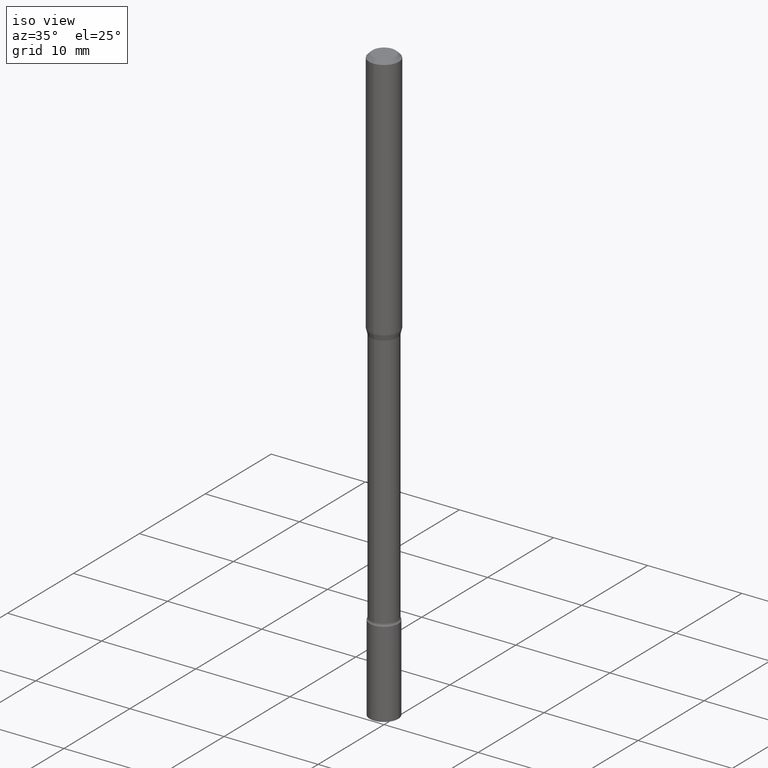
[diagram: clean part render]
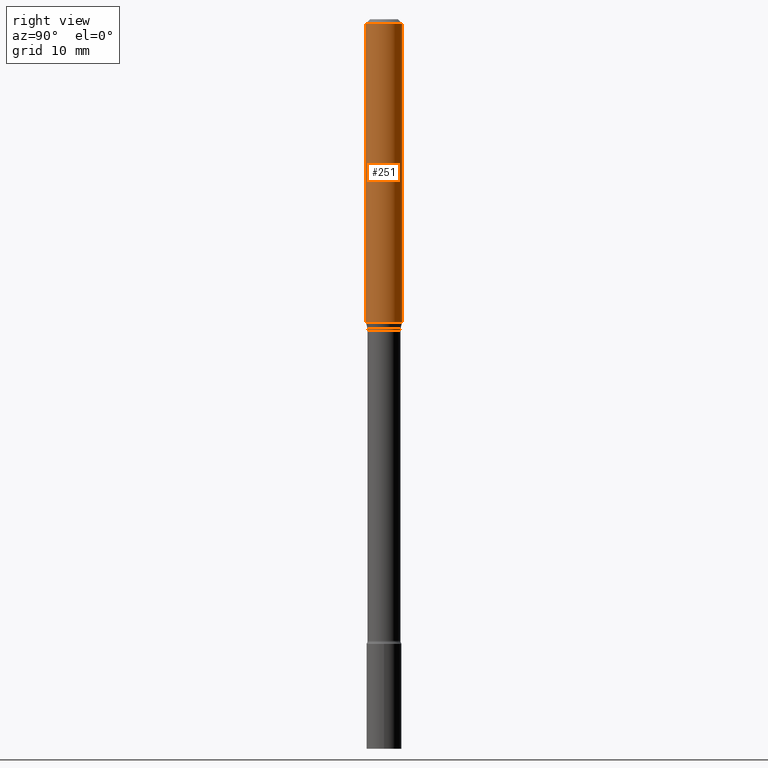
[diagram: tour spotlight — one face highlighted and labeled with its STEP entity id]
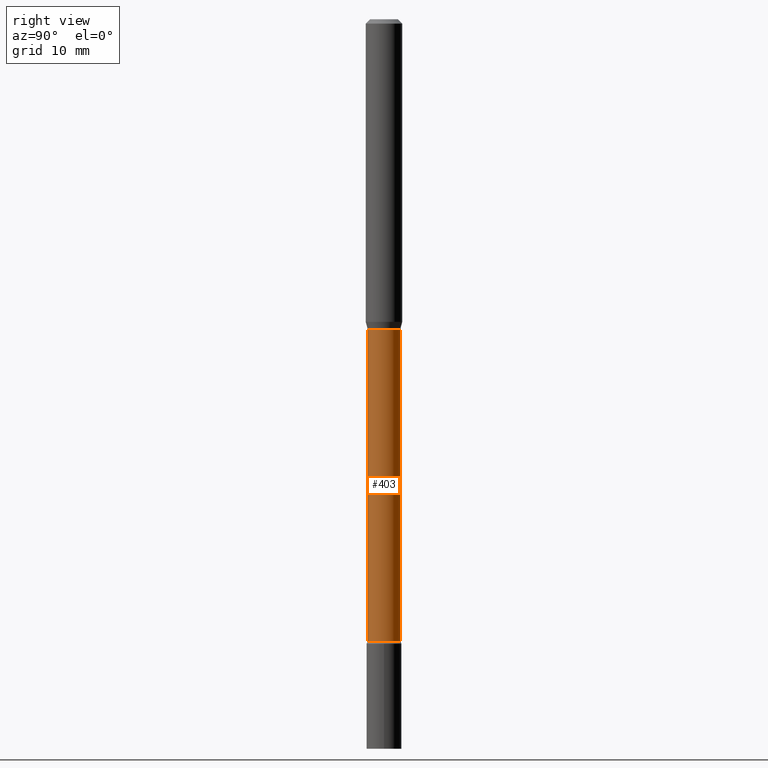
[diagram: tour spotlight — one face highlighted and labeled with its STEP entity id]
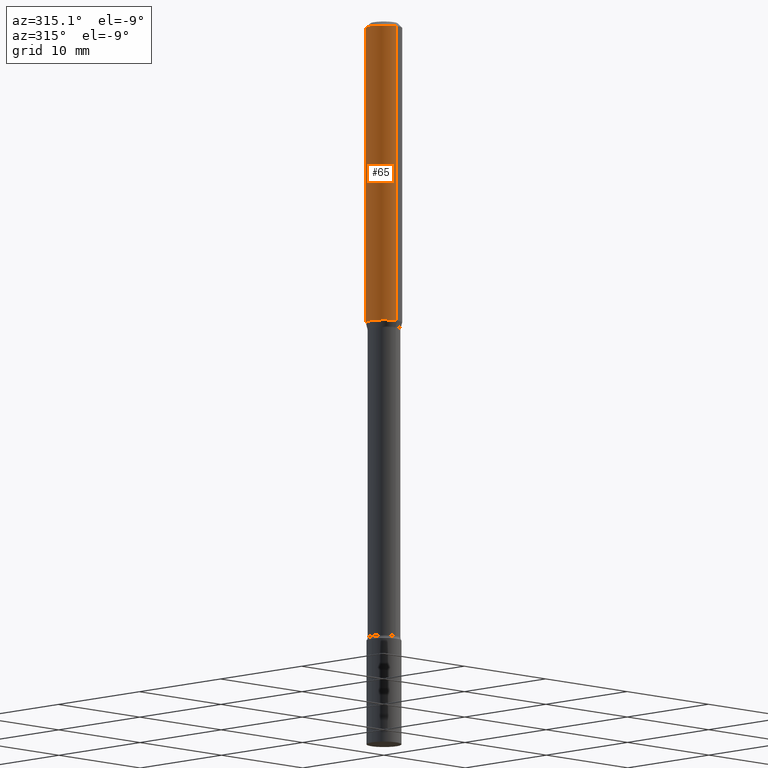
[diagram: tour spotlight — one face highlighted and labeled with its STEP entity id]
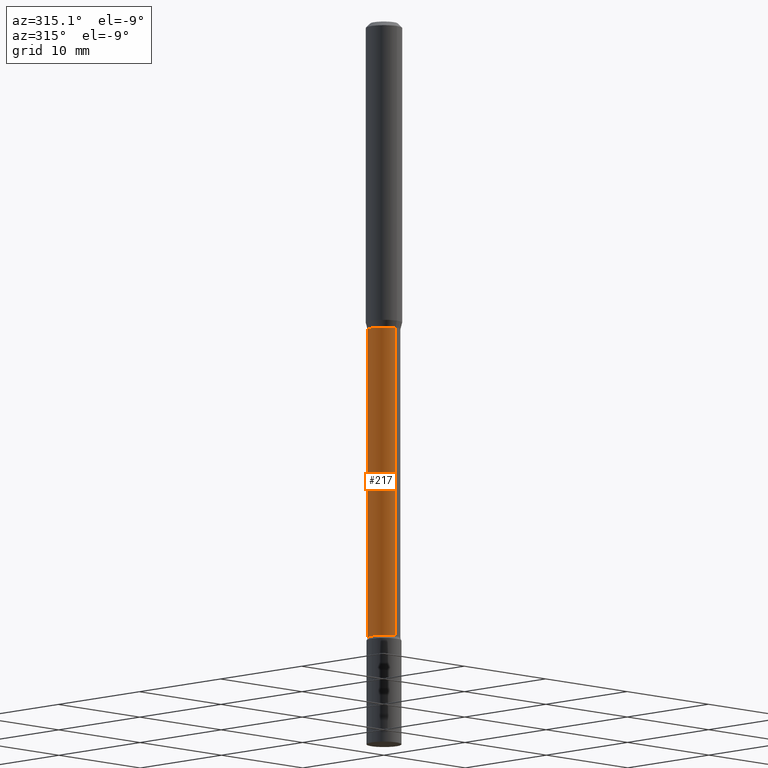
[diagram: tour spotlight — one face highlighted and labeled with its STEP entity id]
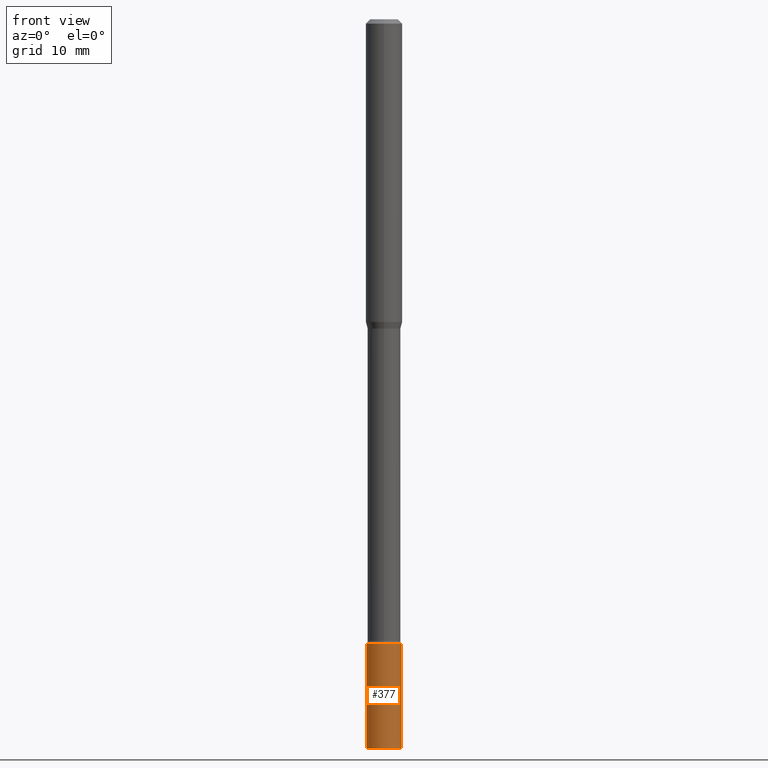
[diagram: tour spotlight — one face highlighted and labeled with its STEP entity id]
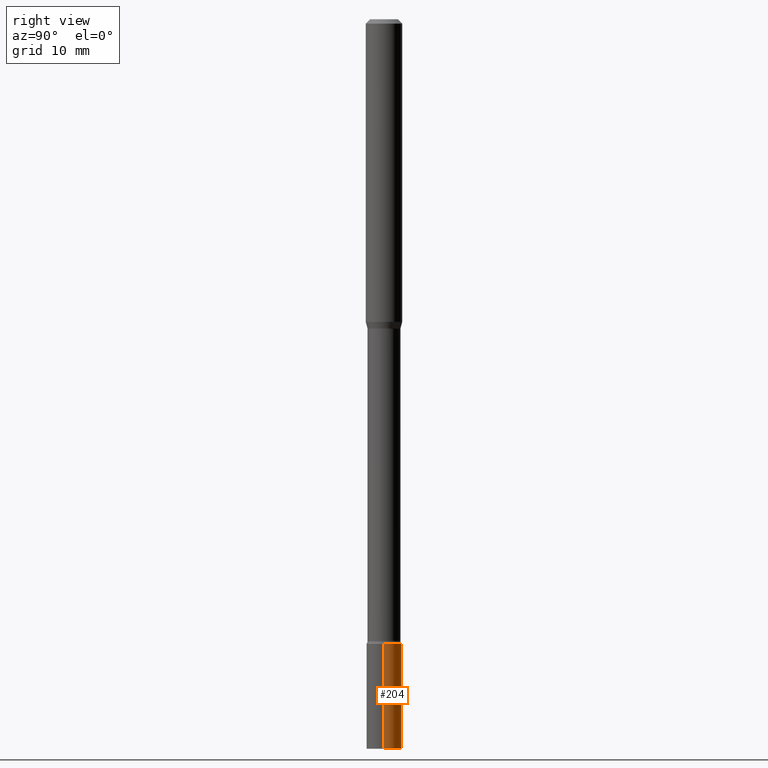
[diagram: tour spotlight — one face highlighted and labeled with its STEP entity id]
A machine part: a face-by-face anatomy tour. The part has 18 B-rep faces; the first image is the clean iso view, then the 6 largest visible faces are spotlighted one at a time (largest first), each with its STEP entity span.

Face 1 — right view, entity #251. In plain terms, the highlighted cylindrical surface (edge-blend (fillet) strip) has radius 1.5875 mm, axis along (-0, 0, 1).
Definition (entity closure, byte-faithful):
#2 = CIRCLE ( 'NONE', #297, 0.06250000000000000000 ) ;
#12 = EDGE_LOOP ( 'NONE', ( #413, #180, #369, #170 ) ) ;
#24 = VERTEX_POINT ( 'NONE', #423 ) ;
#38 = LINE ( 'NONE', #80, #219 ) ;
#43 = DIRECTION ( 'NONE',  ( -2.445444235938896917E-29, 3.491516524834212024E-15, 1.000000000000000000 ) ) ;
#68 = CARTESIAN_POINT ( 'NONE',  ( 0.000000000000000000, 0.000000000000000000, 0.000000000000000000 ) ) ;
#76 = VECTOR ( 'NONE', #186, 39.37007874015748143 ) ;
#80 = CARTESIAN_POINT ( 'NONE',  ( 4.440892098500625669E-16, 0.06250000000000000000, -2.182197828021382515E-16 ) ) ;
#104 = VERTEX_POINT ( 'NONE', #157 ) ;
#110 = CYLINDRICAL_SURFACE ( 'NONE', #173, 0.06250000000000000000 ) ;
#134 = EDGE_CURVE ( 'NONE', #250, #104, #512, .T. ) ;
#151 = EDGE_CURVE ( 'NONE', #250, #24, #381, .T. ) ;
#157 = CARTESIAN_POINT ( 'NONE',  ( -4.364351673553912750E-16, -0.06250000000000005551, -0.01499999999999981209 ) ) ;
#160 = CARTESIAN_POINT ( 'NONE',  ( 2.536499105068069007E-29, -3.621521362220765207E-15, -1.037234490073830173 ) ) ;
#170 = ORIENTED_EDGE ( 'NONE', *, *, #134, .F. ) ;
#173 = AXIS2_PLACEMENT_3D ( 'NONE', #68, #227, #349 ) ;
#180 = ORIENTED_EDGE ( 'NONE', *, *, #266, .T. ) ;
#186 = DIRECTION ( 'NONE',  ( -2.445444235938896917E-29, 3.491516524834212024E-15, 1.000000000000000000 ) ) ;
#189 = DIRECTION ( 'NONE',  ( -2.445444235938896917E-29, 3.491516524834212024E-15, 1.000000000000000000 ) ) ;
#219 = VECTOR ( 'NONE', #360, 39.37007874015748143 ) ;
#227 = DIRECTION ( 'NONE',  ( -2.445444235938896917E-29, 3.491516524834212024E-15, 1.000000000000000000 ) ) ;
#250 = VERTEX_POINT ( 'NONE', #268 ) ;
#251 = ADVANCED_FACE ( 'NONE', ( #431 ), #110, .T. ) ;
#266 = EDGE_CURVE ( 'NONE', #24, #469, #38, .T. ) ;
#268 = CARTESIAN_POINT ( 'NONE',  ( -4.364351673553663766E-16, -0.06250000000000363598, -1.037234490073829951 ) ) ;
#297 = AXIS2_PLACEMENT_3D ( 'NONE', #408, #43, #368 ) ;
#320 = CARTESIAN_POINT ( 'NONE',  ( -4.364351673553916201E-16, -0.06250000000000000000, 2.182197828021382515E-16 ) ) ;
#340 = CARTESIAN_POINT ( 'NONE',  ( 4.440892098500881555E-16, 0.06249999999999995837, -0.01500000000000024751 ) ) ;
#349 = DIRECTION ( 'NONE',  ( -6.982962677686265922E-15, -1.000000000000000000, 3.491516524834212024E-15 ) ) ;
#360 = DIRECTION ( 'NONE',  ( -2.445444235938896917E-29, 3.491516524834212024E-15, 1.000000000000000000 ) ) ;
#368 = DIRECTION ( 'NONE',  ( -6.982962677686265922E-15, -1.000000000000000000, 3.483106191921935554E-15 ) ) ;
#369 = ORIENTED_EDGE ( 'NONE', *, *, #409, .F. ) ;
#381 = CIRCLE ( 'NONE', #401, 0.06250000000000000000 ) ;
#401 = AXIS2_PLACEMENT_3D ( 'NONE', #160, #189, #436 ) ;
#408 = CARTESIAN_POINT ( 'NONE',  ( 3.668166353908352803E-31, -5.237274787251328908E-17, -0.01500000000000003067 ) ) ;
#409 = EDGE_CURVE ( 'NONE', #104, #469, #2, .T. ) ;
#413 = ORIENTED_EDGE ( 'NONE', *, *, #151, .T. ) ;
#423 = CARTESIAN_POINT ( 'NONE',  ( 4.440892098500877611E-16, 0.06249999999999636402, -1.037234490073830395 ) ) ;
#431 = FACE_OUTER_BOUND ( 'NONE', #12, .T. ) ;
#436 = DIRECTION ( 'NONE',  ( -6.982962677686265922E-15, -1.000000000000000000, 4.370956789862821150E-15 ) ) ;
#469 = VERTEX_POINT ( 'NONE', #340 ) ;
#512 = LINE ( 'NONE', #320, #76 ) ;

Face 2 — right view, entity #403. In plain terms, the highlighted cylindrical surface (edge-blend (fillet) strip) has radius 1.4326 mm, axis along (-0, 0, 1).
Definition (entity closure, byte-faithful):
#1 = DIRECTION ( 'NONE',  ( -6.982962677686265922E-15, -1.000000000000000000, 2.421851058212999609E-15 ) ) ;
#13 = CIRCLE ( 'NONE', #146, 0.05640000000000008201 ) ;
#42 = AXIS2_PLACEMENT_3D ( 'NONE', #488, #412, #1 ) ;
#82 = DIRECTION ( 'NONE',  ( -6.982962677686265133E-15, -1.000000000000000000, 3.491516524834212024E-15 ) ) ;
#105 = EDGE_CURVE ( 'NONE', #345, #497, #271, .T. ) ;
#115 = CARTESIAN_POINT ( 'NONE',  ( 4.007461029686966931E-16, 0.05640000000000004038, -1.969215320006496894E-16 ) ) ;
#124 = EDGE_CURVE ( 'NONE', #495, #224, #150, .T. ) ;
#146 = AXIS2_PLACEMENT_3D ( 'NONE', #365, #169, #358 ) ;
#150 = LINE ( 'NONE', #351, #165 ) ;
#165 = VECTOR ( 'NONE', #319, 39.37007874015748143 ) ;
#167 = FACE_OUTER_BOUND ( 'NONE', #455, .T. ) ;
#169 = DIRECTION ( 'NONE',  ( -2.445444235938896917E-29, 3.491516524834212024E-15, 1.000000000000000000 ) ) ;
#205 = CYLINDRICAL_SURFACE ( 'NONE', #263, 0.05640000000000004038 ) ;
#208 = ORIENTED_EDGE ( 'NONE', *, *, #124, .F. ) ;
#224 = VERTEX_POINT ( 'NONE', #441 ) ;
#255 = VECTOR ( 'NONE', #348, 39.37007874015748143 ) ;
#256 = CARTESIAN_POINT ( 'NONE',  ( -3.938390950214538328E-16, -0.05640000000000751357, -2.130251153914436646 ) ) ;
#263 = AXIS2_PLACEMENT_3D ( 'NONE', #325, #484, #82 ) ;
#271 = LINE ( 'NONE', #115, #255 ) ;
#300 = ORIENTED_EDGE ( 'NONE', *, *, #314, .F. ) ;
#314 = EDGE_CURVE ( 'NONE', #224, #497, #517, .T. ) ;
#319 = DIRECTION ( 'NONE',  ( -2.445444235938896917E-29, 3.491516524834212024E-15, 1.000000000000000000 ) ) ;
#325 = CARTESIAN_POINT ( 'NONE',  ( 0.000000000000000000, 0.000000000000000000, 0.000000000000000000 ) ) ;
#328 = EDGE_CURVE ( 'NONE', #495, #345, #13, .T. ) ;
#330 = ORIENTED_EDGE ( 'NONE', *, *, #328, .T. ) ;
#345 = VERTEX_POINT ( 'NONE', #414 ) ;
#348 = DIRECTION ( 'NONE',  ( -2.445444235938896917E-29, 3.491516524834212024E-15, 1.000000000000000000 ) ) ;
#351 = CARTESIAN_POINT ( 'NONE',  ( -3.938390950215056511E-16, -0.05640000000000004038, 1.969215320006496894E-16 ) ) ;
#358 = DIRECTION ( 'NONE',  ( -6.982962677686265133E-15, -1.000000000000000000, 4.843702116425991330E-15 ) ) ;
#365 = CARTESIAN_POINT ( 'NONE',  ( 5.209410405442243342E-29, -7.437807105939404546E-15, -2.130251153914437090 ) ) ;
#366 = ORIENTED_EDGE ( 'NONE', *, *, #105, .T. ) ;
#403 = ADVANCED_FACE ( 'NONE', ( #167 ), #205, .T. ) ;
#412 = DIRECTION ( 'NONE',  ( -2.445444235938896917E-29, 3.491516524834212024E-15, 1.000000000000000000 ) ) ;
#414 = CARTESIAN_POINT ( 'NONE',  ( 4.135358722124309276E-16, 0.05639999999999264352, -2.130251153914437090 ) ) ;
#419 = CARTESIAN_POINT ( 'NONE',  ( 4.007461029687488566E-16, 0.05639999999999628644, -1.061974787463811243 ) ) ;
#441 = CARTESIAN_POINT ( 'NONE',  ( -3.938390950214793722E-16, -0.05640000000000369718, -1.061974787463811021 ) ) ;
#455 = EDGE_LOOP ( 'NONE', ( #330, #366, #300, #208 ) ) ;
#484 = DIRECTION ( 'NONE',  ( -2.445444235938896917E-29, 3.491516524834212024E-15, 1.000000000000000000 ) ) ;
#488 = CARTESIAN_POINT ( 'NONE',  ( 2.597000122715812178E-29, -3.707902519387197566E-15, -1.061974787463811243 ) ) ;
#495 = VERTEX_POINT ( 'NONE', #256 ) ;
#497 = VERTEX_POINT ( 'NONE', #419 ) ;
#517 = CIRCLE ( 'NONE', #42, 0.05639999999999999181 ) ;

Face 3 — auxiliary view, entity #65. In plain terms, the highlighted cylindrical surface (edge-blend (fillet) strip) has radius 1.5875 mm, axis along (-0, 0, 1).
Definition (entity closure, byte-faithful):
#10 = EDGE_CURVE ( 'NONE', #469, #104, #514, .T. ) ;
#14 = DIRECTION ( 'NONE',  ( -2.445444235938896917E-29, 3.491516524834212024E-15, 1.000000000000000000 ) ) ;
#16 = DIRECTION ( 'NONE',  ( -6.982962677686265922E-15, -1.000000000000000000, 3.491516524834212024E-15 ) ) ;
#24 = VERTEX_POINT ( 'NONE', #423 ) ;
#28 = AXIS2_PLACEMENT_3D ( 'NONE', #54, #14, #426 ) ;
#38 = LINE ( 'NONE', #80, #219 ) ;
#54 = CARTESIAN_POINT ( 'NONE',  ( 2.536499105068069007E-29, -3.621521362220765207E-15, -1.037234490073830173 ) ) ;
#65 = ADVANCED_FACE ( 'NONE', ( #143 ), #504, .T. ) ;
#67 = CARTESIAN_POINT ( 'NONE',  ( 3.668166353908352803E-31, -5.237274787251328908E-17, -0.01500000000000003067 ) ) ;
#76 = VECTOR ( 'NONE', #186, 39.37007874015748143 ) ;
#80 = CARTESIAN_POINT ( 'NONE',  ( 4.440892098500625669E-16, 0.06250000000000000000, -2.182197828021382515E-16 ) ) ;
#81 = ORIENTED_EDGE ( 'NONE', *, *, #10, .F. ) ;
#97 = CIRCLE ( 'NONE', #28, 0.06250000000000000000 ) ;
#104 = VERTEX_POINT ( 'NONE', #157 ) ;
#134 = EDGE_CURVE ( 'NONE', #250, #104, #512, .T. ) ;
#143 = FACE_OUTER_BOUND ( 'NONE', #422, .T. ) ;
#157 = CARTESIAN_POINT ( 'NONE',  ( -4.364351673553912750E-16, -0.06250000000000005551, -0.01499999999999981209 ) ) ;
#168 = ORIENTED_EDGE ( 'NONE', *, *, #508, .T. ) ;
#175 = ORIENTED_EDGE ( 'NONE', *, *, #134, .T. ) ;
#186 = DIRECTION ( 'NONE',  ( -2.445444235938896917E-29, 3.491516524834212024E-15, 1.000000000000000000 ) ) ;
#214 = DIRECTION ( 'NONE',  ( -6.982962677686265922E-15, -1.000000000000000000, 3.483106191921935554E-15 ) ) ;
#219 = VECTOR ( 'NONE', #360, 39.37007874015748143 ) ;
#250 = VERTEX_POINT ( 'NONE', #268 ) ;
#266 = EDGE_CURVE ( 'NONE', #24, #469, #38, .T. ) ;
#268 = CARTESIAN_POINT ( 'NONE',  ( -4.364351673553663766E-16, -0.06250000000000363598, -1.037234490073829951 ) ) ;
#296 = DIRECTION ( 'NONE',  ( -2.445444235938896917E-29, 3.491516524834212024E-15, 1.000000000000000000 ) ) ;
#320 = CARTESIAN_POINT ( 'NONE',  ( -4.364351673553916201E-16, -0.06250000000000000000, 2.182197828021382515E-16 ) ) ;
#340 = CARTESIAN_POINT ( 'NONE',  ( 4.440892098500881555E-16, 0.06249999999999995837, -0.01500000000000024751 ) ) ;
#360 = DIRECTION ( 'NONE',  ( -2.445444235938896917E-29, 3.491516524834212024E-15, 1.000000000000000000 ) ) ;
#372 = AXIS2_PLACEMENT_3D ( 'NONE', #420, #378, #16 ) ;
#378 = DIRECTION ( 'NONE',  ( -2.445444235938896917E-29, 3.491516524834212024E-15, 1.000000000000000000 ) ) ;
#420 = CARTESIAN_POINT ( 'NONE',  ( 0.000000000000000000, 0.000000000000000000, 0.000000000000000000 ) ) ;
#422 = EDGE_LOOP ( 'NONE', ( #492, #168, #175, #81 ) ) ;
#423 = CARTESIAN_POINT ( 'NONE',  ( 4.440892098500877611E-16, 0.06249999999999636402, -1.037234490073830395 ) ) ;
#426 = DIRECTION ( 'NONE',  ( -6.982962677686265922E-15, -1.000000000000000000, 4.370956789862821150E-15 ) ) ;
#469 = VERTEX_POINT ( 'NONE', #340 ) ;
#473 = AXIS2_PLACEMENT_3D ( 'NONE', #67, #296, #214 ) ;
#492 = ORIENTED_EDGE ( 'NONE', *, *, #266, .F. ) ;
#504 = CYLINDRICAL_SURFACE ( 'NONE', #372, 0.06250000000000000000 ) ;
#508 = EDGE_CURVE ( 'NONE', #24, #250, #97, .T. ) ;
#512 = LINE ( 'NONE', #320, #76 ) ;
#514 = CIRCLE ( 'NONE', #473, 0.06250000000000000000 ) ;

Face 4 — auxiliary view, entity #217. In plain terms, the highlighted cylindrical surface (edge-blend (fillet) strip) has radius 1.4326 mm, axis along (-0, 0, 1).
Definition (entity closure, byte-faithful):
#20 = EDGE_CURVE ( 'NONE', #497, #224, #244, .T. ) ;
#51 = DIRECTION ( 'NONE',  ( -2.445444235938896917E-29, 3.491516524834212024E-15, 1.000000000000000000 ) ) ;
#95 = AXIS2_PLACEMENT_3D ( 'NONE', #108, #118, #400 ) ;
#105 = EDGE_CURVE ( 'NONE', #345, #497, #271, .T. ) ;
#108 = CARTESIAN_POINT ( 'NONE',  ( 0.000000000000000000, 0.000000000000000000, 0.000000000000000000 ) ) ;
#115 = CARTESIAN_POINT ( 'NONE',  ( 4.007461029686966931E-16, 0.05640000000000004038, -1.969215320006496894E-16 ) ) ;
#118 = DIRECTION ( 'NONE',  ( -2.445444235938896917E-29, 3.491516524834212024E-15, 1.000000000000000000 ) ) ;
#124 = EDGE_CURVE ( 'NONE', #495, #224, #150, .T. ) ;
#126 = ORIENTED_EDGE ( 'NONE', *, *, #105, .F. ) ;
#140 = ORIENTED_EDGE ( 'NONE', *, *, #465, .T. ) ;
#141 = CARTESIAN_POINT ( 'NONE',  ( 5.209410405442243342E-29, -7.437807105939404546E-15, -2.130251153914437090 ) ) ;
#150 = LINE ( 'NONE', #351, #165 ) ;
#156 = CIRCLE ( 'NONE', #364, 0.05640000000000008201 ) ;
#165 = VECTOR ( 'NONE', #319, 39.37007874015748143 ) ;
#199 = ORIENTED_EDGE ( 'NONE', *, *, #124, .T. ) ;
#217 = ADVANCED_FACE ( 'NONE', ( #235 ), #520, .T. ) ;
#224 = VERTEX_POINT ( 'NONE', #441 ) ;
#235 = FACE_OUTER_BOUND ( 'NONE', #302, .T. ) ;
#244 = CIRCLE ( 'NONE', #305, 0.05639999999999999181 ) ;
#253 = ORIENTED_EDGE ( 'NONE', *, *, #20, .F. ) ;
#255 = VECTOR ( 'NONE', #348, 39.37007874015748143 ) ;
#256 = CARTESIAN_POINT ( 'NONE',  ( -3.938390950214538328E-16, -0.05640000000000751357, -2.130251153914436646 ) ) ;
#261 = DIRECTION ( 'NONE',  ( -6.982962677686265922E-15, -1.000000000000000000, 2.421851058212999609E-15 ) ) ;
#271 = LINE ( 'NONE', #115, #255 ) ;
#302 = EDGE_LOOP ( 'NONE', ( #126, #140, #199, #253 ) ) ;
#305 = AXIS2_PLACEMENT_3D ( 'NONE', #307, #387, #261 ) ;
#307 = CARTESIAN_POINT ( 'NONE',  ( 2.597000122715812178E-29, -3.707902519387197566E-15, -1.061974787463811243 ) ) ;
#319 = DIRECTION ( 'NONE',  ( -2.445444235938896917E-29, 3.491516524834212024E-15, 1.000000000000000000 ) ) ;
#345 = VERTEX_POINT ( 'NONE', #414 ) ;
#348 = DIRECTION ( 'NONE',  ( -2.445444235938896917E-29, 3.491516524834212024E-15, 1.000000000000000000 ) ) ;
#351 = CARTESIAN_POINT ( 'NONE',  ( -3.938390950215056511E-16, -0.05640000000000004038, 1.969215320006496894E-16 ) ) ;
#364 = AXIS2_PLACEMENT_3D ( 'NONE', #141, #51, #462 ) ;
#387 = DIRECTION ( 'NONE',  ( -2.445444235938896917E-29, 3.491516524834212024E-15, 1.000000000000000000 ) ) ;
#400 = DIRECTION ( 'NONE',  ( -6.982962677686265133E-15, -1.000000000000000000, 3.491516524834212024E-15 ) ) ;
#414 = CARTESIAN_POINT ( 'NONE',  ( 4.135358722124309276E-16, 0.05639999999999264352, -2.130251153914437090 ) ) ;
#419 = CARTESIAN_POINT ( 'NONE',  ( 4.007461029687488566E-16, 0.05639999999999628644, -1.061974787463811243 ) ) ;
#441 = CARTESIAN_POINT ( 'NONE',  ( -3.938390950214793722E-16, -0.05640000000000369718, -1.061974787463811021 ) ) ;
#462 = DIRECTION ( 'NONE',  ( -6.982962677686265133E-15, -1.000000000000000000, 4.843702116425991330E-15 ) ) ;
#465 = EDGE_CURVE ( 'NONE', #345, #495, #156, .T. ) ;
#495 = VERTEX_POINT ( 'NONE', #256 ) ;
#497 = VERTEX_POINT ( 'NONE', #419 ) ;
#520 = CYLINDRICAL_SURFACE ( 'NONE', #95, 0.05640000000000004038 ) ;

Face 5 — front view, entity #377. In plain terms, the highlighted cylindrical surface (edge-blend (fillet) strip) has radius 1.524 mm, axis along (-0, 0, 1).
Definition (entity closure, byte-faithful):
#6 = CARTESIAN_POINT ( 'NONE',  ( -0.05999999999999999778, -7.673911064660037924E-15, -2.140000000000000124 ) ) ;
#7 = VERTEX_POINT ( 'NONE', #384 ) ;
#39 = DIRECTION ( 'NONE',  ( -2.445468806185136597E-29, 3.491481338843145583E-15, 1.000000000000000000 ) ) ;
#40 = EDGE_CURVE ( 'NONE', #206, #326, #154, .T. ) ;
#47 = ORIENTED_EDGE ( 'NONE', *, *, #299, .T. ) ;
#50 = EDGE_LOOP ( 'NONE', ( #487, #158, #47, #192 ) ) ;
#52 = VECTOR ( 'NONE', #153, 39.37007874015748143 ) ;
#72 = LINE ( 'NONE', #74, #52 ) ;
#74 = CARTESIAN_POINT ( 'NONE',  ( -0.05999999999999999778, 4.263256414560600957E-16, -2.951361054152943413E-30 ) ) ;
#85 = CYLINDRICAL_SURFACE ( 'NONE', #179, 0.05999999999999999778 ) ;
#107 = DIRECTION ( 'NONE',  ( 1.000000000000000000, -6.982962677686251722E-15, 0.000000000000000000 ) ) ;
#122 = DIRECTION ( 'NONE',  ( 1.000000000000000000, -6.982962677686267499E-15, 4.876176775795936353E-29 ) ) ;
#142 = EDGE_CURVE ( 'NONE', #206, #264, #72, .T. ) ;
#153 = DIRECTION ( 'NONE',  ( -2.445468806185136877E-29, 3.491481338843145188E-15, 1.000000000000000000 ) ) ;
#154 = CIRCLE ( 'NONE', #226, 0.05999999999999999778 ) ;
#158 = ORIENTED_EDGE ( 'NONE', *, *, #40, .T. ) ;
#179 = AXIS2_PLACEMENT_3D ( 'NONE', #456, #39, #122 ) ;
#187 = CIRCLE ( 'NONE', #236, 0.05999999999999999778 ) ;
#192 = ORIENTED_EDGE ( 'NONE', *, *, #291, .F. ) ;
#202 = DIRECTION ( 'NONE',  ( -2.445468806185136597E-29, 3.491481338843145583E-15, 1.000000000000000000 ) ) ;
#206 = VERTEX_POINT ( 'NONE', #518 ) ;
#207 = CARTESIAN_POINT ( 'NONE',  ( 5.233303245236192586E-29, -7.471770065124331886E-15, -2.140000000000000124 ) ) ;
#226 = AXIS2_PLACEMENT_3D ( 'NONE', #257, #467, #107 ) ;
#236 = AXIS2_PLACEMENT_3D ( 'NONE', #207, #202, #490 ) ;
#241 = LINE ( 'NONE', #446, #323 ) ;
#257 = CARTESIAN_POINT ( 'NONE',  ( 6.113672015462842613E-29, -8.728703347107864943E-15, -2.500000000000000000 ) ) ;
#264 = VERTEX_POINT ( 'NONE', #6 ) ;
#286 = DIRECTION ( 'NONE',  ( -2.445468806185136877E-29, 3.491481338843145188E-15, 1.000000000000000000 ) ) ;
#291 = EDGE_CURVE ( 'NONE', #264, #7, #187, .T. ) ;
#293 = FACE_OUTER_BOUND ( 'NONE', #50, .T. ) ;
#299 = EDGE_CURVE ( 'NONE', #326, #7, #241, .T. ) ;
#323 = VECTOR ( 'NONE', #286, 39.37007874015748143 ) ;
#326 = VERTEX_POINT ( 'NONE', #406 ) ;
#377 = ADVANCED_FACE ( 'NONE', ( #293 ), #85, .T. ) ;
#384 = CARTESIAN_POINT ( 'NONE',  ( 0.05999999999999999778, -7.890747825785508520E-15, -2.140000000000000124 ) ) ;
#406 = CARTESIAN_POINT ( 'NONE',  ( 0.05999999999999999778, -9.147681107769039999E-15, -2.500000000000000000 ) ) ;
#446 = CARTESIAN_POINT ( 'NONE',  ( 0.05999999999999999778, -4.189777606611760421E-16, 2.925706065477561756E-30 ) ) ;
#456 = CARTESIAN_POINT ( 'NONE',  ( 0.000000000000000000, 0.000000000000000000, 0.000000000000000000 ) ) ;
#467 = DIRECTION ( 'NONE',  ( -2.445468806185136597E-29, 3.491481338843145583E-15, 1.000000000000000000 ) ) ;
#487 = ORIENTED_EDGE ( 'NONE', *, *, #142, .F. ) ;
#490 = DIRECTION ( 'NONE',  ( 1.000000000000000000, -6.982962677686268288E-15, 0.000000000000000000 ) ) ;
#518 = CARTESIAN_POINT ( 'NONE',  ( -0.05999999999999999778, -7.673911064660037924E-15, -2.500000000000000000 ) ) ;

Face 6 — right view, entity #204. In plain terms, the highlighted cylindrical surface (edge-blend (fillet) strip) has radius 1.524 mm, axis along (-0, 0, 1).
Definition (entity closure, byte-faithful):
#6 = CARTESIAN_POINT ( 'NONE',  ( -0.05999999999999999778, -7.673911064660037924E-15, -2.140000000000000124 ) ) ;
#7 = VERTEX_POINT ( 'NONE', #384 ) ;
#34 = CARTESIAN_POINT ( 'NONE',  ( 6.113672015462842613E-29, -8.728703347107864943E-15, -2.500000000000000000 ) ) ;
#37 = DIRECTION ( 'NONE',  ( -2.445468806185136597E-29, 3.491481338843145583E-15, 1.000000000000000000 ) ) ;
#46 = CARTESIAN_POINT ( 'NONE',  ( 5.233303245236192586E-29, -7.471770065124331886E-15, -2.140000000000000124 ) ) ;
#52 = VECTOR ( 'NONE', #153, 39.37007874015748143 ) ;
#72 = LINE ( 'NONE', #74, #52 ) ;
#74 = CARTESIAN_POINT ( 'NONE',  ( -0.05999999999999999778, 4.263256414560600957E-16, -2.951361054152943413E-30 ) ) ;
#121 = ORIENTED_EDGE ( 'NONE', *, *, #142, .T. ) ;
#127 = AXIS2_PLACEMENT_3D ( 'NONE', #46, #198, #290 ) ;
#131 = ORIENTED_EDGE ( 'NONE', *, *, #181, .T. ) ;
#142 = EDGE_CURVE ( 'NONE', #206, #264, #72, .T. ) ;
#153 = DIRECTION ( 'NONE',  ( -2.445468806185136877E-29, 3.491481338843145188E-15, 1.000000000000000000 ) ) ;
#155 = CIRCLE ( 'NONE', #209, 0.05999999999999999778 ) ;
#181 = EDGE_CURVE ( 'NONE', #326, #206, #155, .T. ) ;
#198 = DIRECTION ( 'NONE',  ( -2.445468806185136597E-29, 3.491481338843145583E-15, 1.000000000000000000 ) ) ;
#204 = ADVANCED_FACE ( 'NONE', ( #313 ), #354, .T. ) ;
#206 = VERTEX_POINT ( 'NONE', #518 ) ;
#209 = AXIS2_PLACEMENT_3D ( 'NONE', #34, #37, #398 ) ;
#241 = LINE ( 'NONE', #446, #323 ) ;
#245 = CIRCLE ( 'NONE', #127, 0.05999999999999999778 ) ;
#264 = VERTEX_POINT ( 'NONE', #6 ) ;
#286 = DIRECTION ( 'NONE',  ( -2.445468806185136877E-29, 3.491481338843145188E-15, 1.000000000000000000 ) ) ;
#290 = DIRECTION ( 'NONE',  ( 1.000000000000000000, -6.982962677686268288E-15, 0.000000000000000000 ) ) ;
#294 = ORIENTED_EDGE ( 'NONE', *, *, #299, .F. ) ;
#299 = EDGE_CURVE ( 'NONE', #326, #7, #241, .T. ) ;
#313 = FACE_OUTER_BOUND ( 'NONE', #415, .T. ) ;
#318 = AXIS2_PLACEMENT_3D ( 'NONE', #470, #478, #510 ) ;
#323 = VECTOR ( 'NONE', #286, 39.37007874015748143 ) ;
#326 = VERTEX_POINT ( 'NONE', #406 ) ;
#342 = ORIENTED_EDGE ( 'NONE', *, *, #385, .F. ) ;
#354 = CYLINDRICAL_SURFACE ( 'NONE', #318, 0.05999999999999999778 ) ;
#384 = CARTESIAN_POINT ( 'NONE',  ( 0.05999999999999999778, -7.890747825785508520E-15, -2.140000000000000124 ) ) ;
#385 = EDGE_CURVE ( 'NONE', #7, #264, #245, .T. ) ;
#398 = DIRECTION ( 'NONE',  ( 1.000000000000000000, -6.982962677686251722E-15, 0.000000000000000000 ) ) ;
#406 = CARTESIAN_POINT ( 'NONE',  ( 0.05999999999999999778, -9.147681107769039999E-15, -2.500000000000000000 ) ) ;
#415 = EDGE_LOOP ( 'NONE', ( #131, #121, #342, #294 ) ) ;
#446 = CARTESIAN_POINT ( 'NONE',  ( 0.05999999999999999778, -4.189777606611760421E-16, 2.925706065477561756E-30 ) ) ;
#470 = CARTESIAN_POINT ( 'NONE',  ( 0.000000000000000000, 0.000000000000000000, 0.000000000000000000 ) ) ;
#478 = DIRECTION ( 'NONE',  ( -2.445468806185136597E-29, 3.491481338843145583E-15, 1.000000000000000000 ) ) ;
#510 = DIRECTION ( 'NONE',  ( 1.000000000000000000, -6.982962677686267499E-15, 4.876176775795936353E-29 ) ) ;
#518 = CARTESIAN_POINT ( 'NONE',  ( -0.05999999999999999778, -7.673911064660037924E-15, -2.500000000000000000 ) ) ;